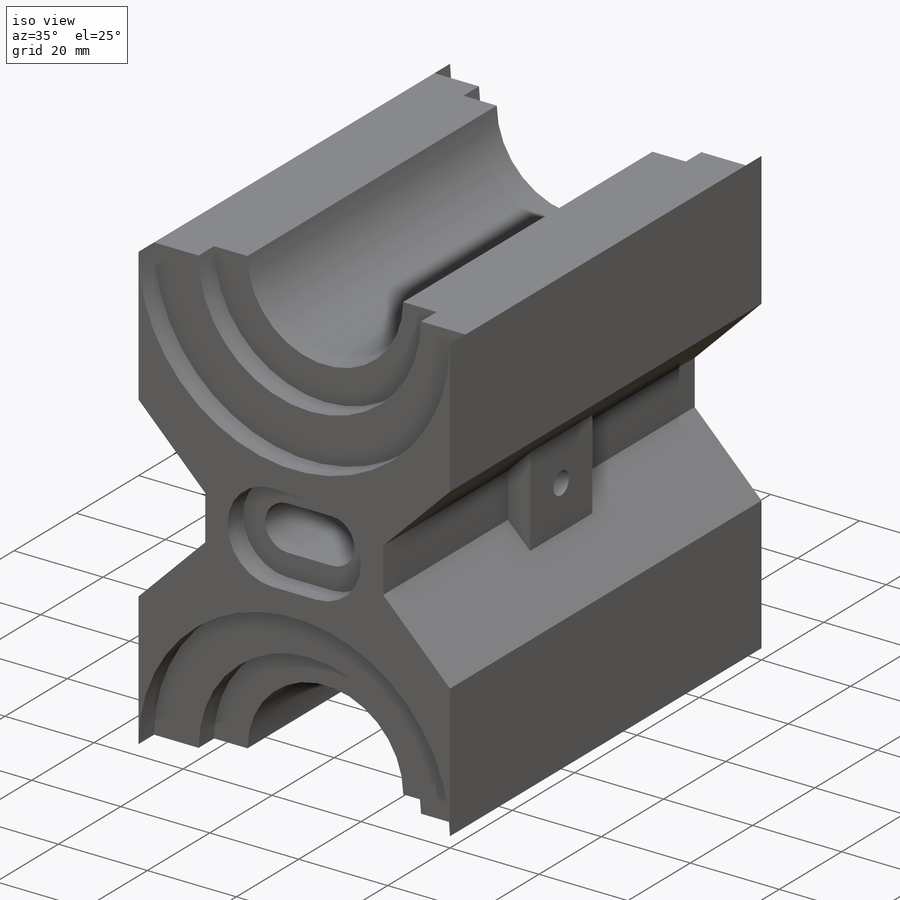
[diagram: iso view]
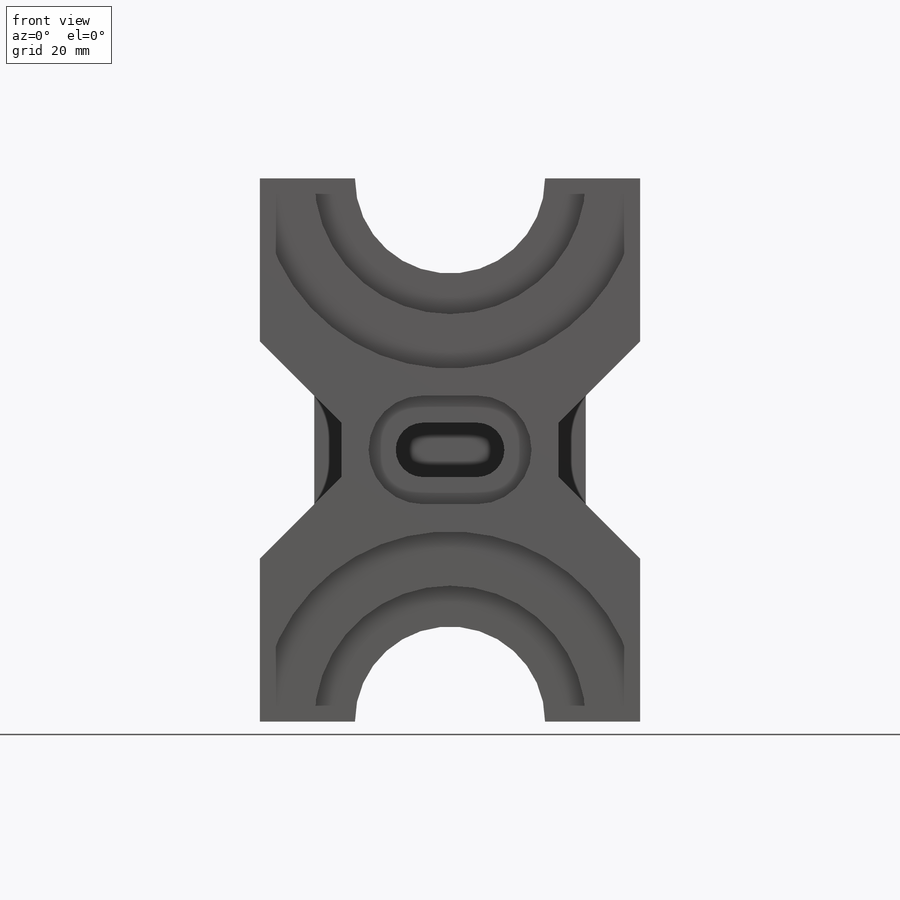
[diagram: front view]
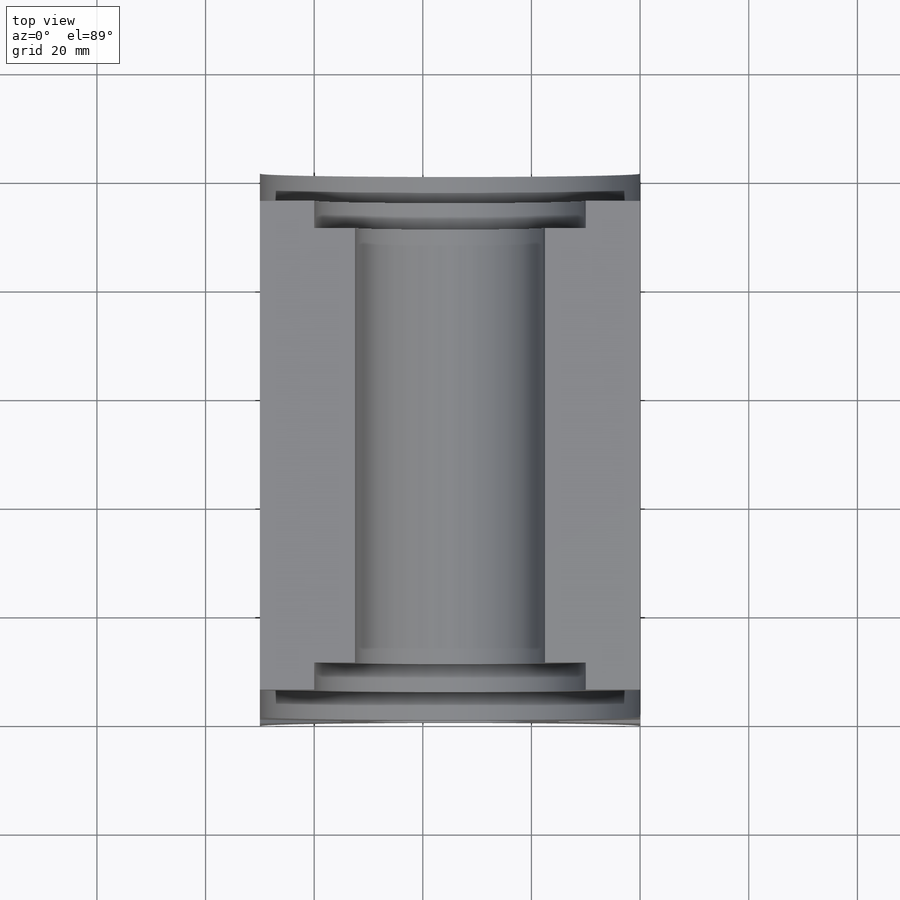
[diagram: top view]
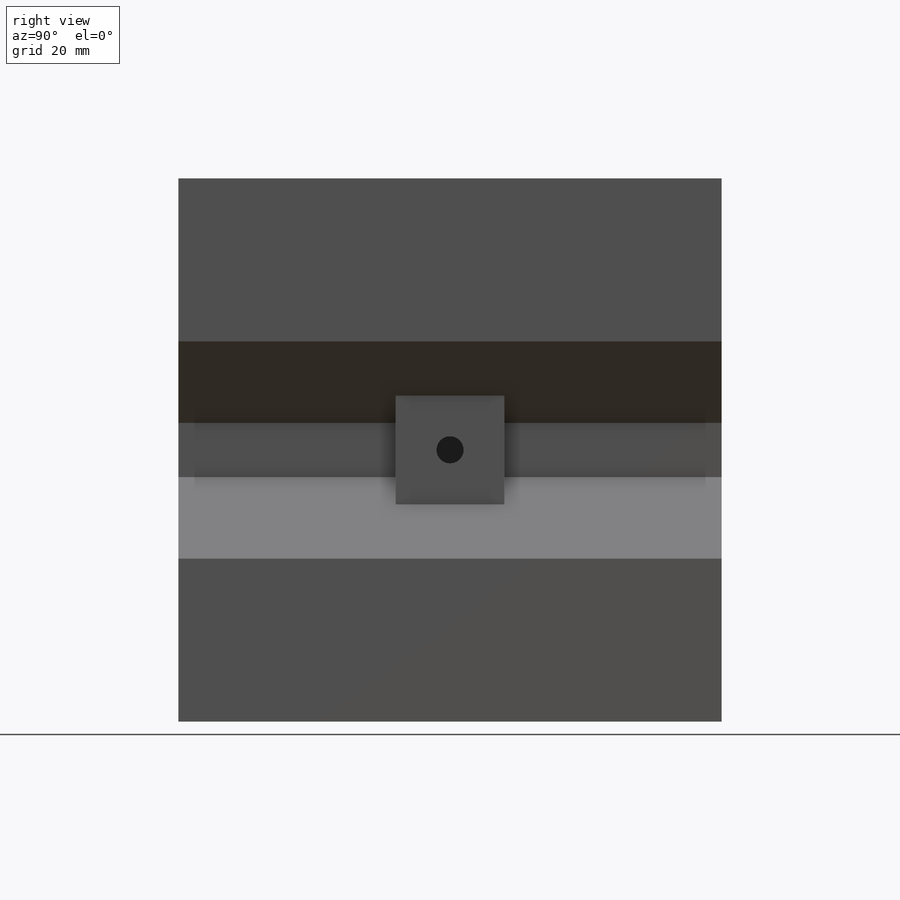
[diagram: right view]
SOLIDWORKS PART (.sldprt)
format: sldprt  version: not decoded by parser v0  size: 479,744 bytes
history: native  units: mm
features: sketch x13, cut_extrude x9, extrude x4, material x1 (+13 scaffold rows collapsed)
feature tree (40):
  scaffold x13  (default folders/planes/origin — collapsed)
  material  "Material <not specified>"
  sketch  "Sketch1"  dims[c1.D3=35.0mm c1.D1=15.0mm c1.D2=15.0mm c2.D3=10.0mm c2.D4=10.0mm c2.D5=15.0mm c2.D6=10.0mm c2.D7=15.0mm c2.D8=15.0mm c2.D9=15.0mm c2.D10=15.0mm c2.D11=30.0mm c2.D12=10.0mm c2.D13=10.0mm c3.D3=10.0mm c3.D4=10.0mm c3.D14=30.0mm c3.D15=30.0mm c3.D16=40.0mm c3.D17=5.0mm c4.D3=70.0mm]
  extrude  "Boss-Extrude1"  Depth=100mm
  sketch  "Sketch2"  dims[c1.D1=~23.683744mm c1.D3=25.0mm c1.D4=35.0mm c1.D5=35.0mm c1.D6=~22.975256mm c1.D8=25.0mm c1.D9=25.0mm c2.D1=10.0mm c2.D2=10.0mm c2.D6=10.0mm c2.D7=10.0mm]
  extrude  "Boss-Extrude2"  Depth=95mm
  sketch  "Sketch3"  dims[c1.D1=25.0mm c1.D2=35.0mm c1.D3=25.0mm c1.D4=35.0mm c2.D1=10.0mm c2.D3=10.0mm]
  cut_extrude  "Cut-Extrude1"  Depth=5mm
  sketch  "Sketch4"  dims[c1.D1=25.0mm c1.D3=17.5mm c1.D4=25.0mm c1.D5=25.0mm c1.D7=17.5mm c2.D1=7.5mm c2.D2=7.5mm c2.D5=7.5mm c2.D6=7.5mm]
  extrude  "Boss-Extrude5"  Depth=85mm
  sketch  "Sketch7"  dims[c1.D1=17.5mm c1.D3=17.5mm c1.D4=25.0mm c1.D5=17.5mm c1.D7=17.5mm c1.D8=25.0mm c2.D1=7.5mm c2.D2=7.5mm c2.D5=7.5mm c2.D6=7.5mm]
  cut_extrude  "Cut-Extrude4"  Depth=5mm
  sketch  "Sketch9"  dims[D1=5.0mm D2=5.0mm]
  extrude  "Boss-Extrude6"  Depth=60mm
  sketch  "Sketch10"  dims[D1=5.0mm D2=20.0mm]
  cut_extrude  "Cut-Extrude5"  Depth=40mm
  sketch  "Sketch11"  dims[c1.D1=5.0mm c1.D3=5.0mm c1.D2=10.0mm c2.D3=10.0mm]
  cut_extrude  "Cut-Extrude6"  Depth=15mm
  sketch  "Sketch12"  dims[D1=~19.403483mm D2=10.0mm D3=10.0mm]
  cut_extrude  "Cut-Extrude7"  Depth=15mm
  sketch  "Sketch13"  dims[D1=10.0mm D2=20.0mm]
  cut_extrude  "Cut-Extrude8"  Depth=5mm
  sketch  "Sketch14"  dims[D1=10.0mm D2=5.0mm D3=5.0mm]
  cut_extrude  "Cut-Extrude9"  Depth=30mm
  sketch  "Sketch15"  dims[D1=10.0mm D2=15.0mm]
  cut_extrude  "Cut-Extrude10"  Depth=5mm
  sketch  "Sketch16"  dims[D1=5.0mm D2=5.0mm]
  cut_extrude  "Cut-Extrude11"  Depth=30mm
decode coverage: 26 of 26 modeling features carry decoded parameters
note: ~ marks probable driven/reference dimensions
note: suppression state not decoded; provenance and decode notes live in map.json
